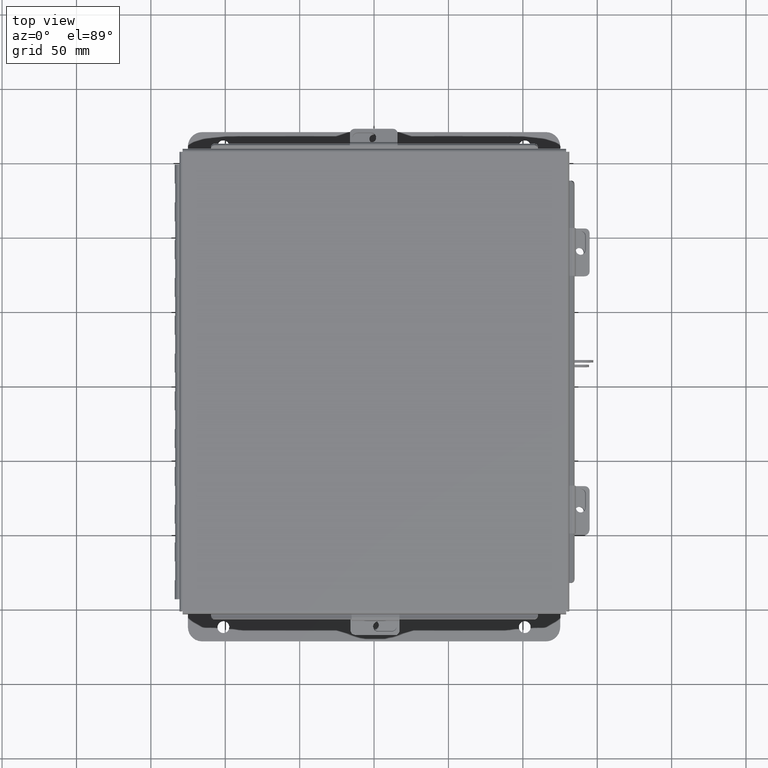
[diagram: clean part render]
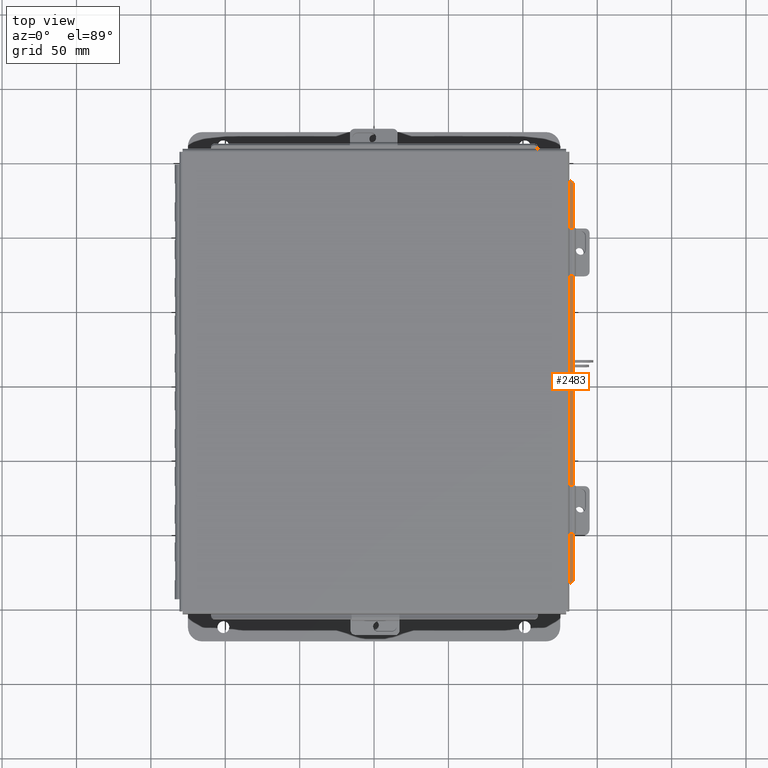
[diagram: same view with one face highlighted and labeled with its STEP entity id]
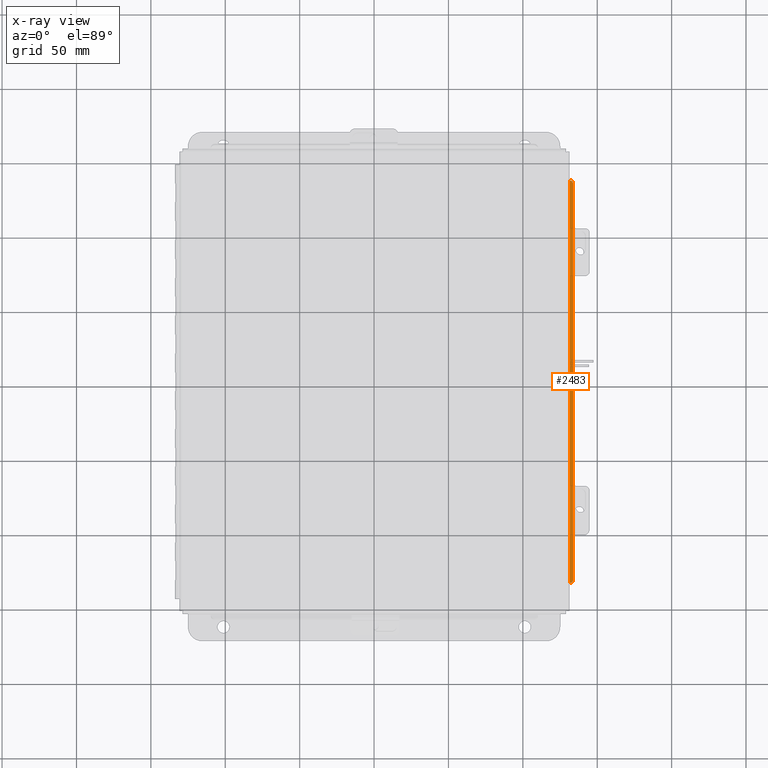
[diagram: x-ray of the same camera — body ghosted, the highlighted face saturated]
A machine part, top view. The second image highlights one B-rep face of the part: STEP entity #2483.
The next image is the same camera in x-ray: the body ghosted, the highlighted face saturated — about 0% of this face is hidden behind the body in this view.
In plain terms, the highlighted planar face has unit normal (-0.5, -0, 0.866).
Its self-contained STEP definition (entity closure, byte-faithful):
#24 = CARTESIAN_POINT ( 'NONE',  ( -5.169750000000002300, 5.324478932188135600, 0.4795057713659395800 ) ) ;
#181 = CARTESIAN_POINT ( 'NONE',  ( -5.174103810567668700, -5.324478932188134700, 0.4769920976626969600 ) ) ;
#974 = CARTESIAN_POINT ( 'NONE',  ( -5.169750000000002300, -5.324478932188134700, 0.4795057713659395800 ) ) ;
#1316 = EDGE_CURVE ( 'NONE', #12240, #6551, #12857, .T. ) ;
#1872 = CARTESIAN_POINT ( 'NONE',  ( -5.174103810567669500, 5.324478932188136500, 0.4769920976626966200 ) ) ;
#1881 = ORIENTED_EDGE ( 'NONE', *, *, #14186, .F. ) ;
#2483 = ADVANCED_FACE ( 'NONE', ( #12433 ), #12835, .T. ) ;
#2669 = DIRECTION ( 'NONE',  ( 0.0000000000000000000, 1.000000000000000000, -1.539219909660675400E-016 ) ) ;
#2784 = VECTOR ( 'NONE', #16295, 39.37007874015748100 ) ;
#3633 = AXIS2_PLACEMENT_3D ( 'NONE', #6285, #17083, #14679 ) ;
#3662 = CARTESIAN_POINT ( 'NONE',  ( -5.174103810567668700, -5.224478932188135100, 0.4769920976626971200 ) ) ;
#4557 = AXIS2_PLACEMENT_3D ( 'NONE', #3662, #13171, #5022 ) ;
#4918 = CARTESIAN_POINT ( 'NONE',  ( -5.260706350946112100, -5.224478932188135100, 0.4269920976626969100 ) ) ;
#5022 = DIRECTION ( 'NONE',  ( -0.8660254037844370400, 0.0000000000000000000, -0.5000000000000028900 ) ) ;
#5130 = VERTEX_POINT ( 'NONE', #181 ) ;
#5555 = VERTEX_POINT ( 'NONE', #974 ) ;
#5587 = VERTEX_POINT ( 'NONE', #24 ) ;
#5859 = CARTESIAN_POINT ( 'NONE',  ( -5.260706350946112100, 5.224478932188135100, 0.4269920976626969100 ) ) ;
#6285 = CARTESIAN_POINT ( 'NONE',  ( -5.174103810567668700, 5.224478932188135100, 0.4769920976626971800 ) ) ;
#6551 = VERTEX_POINT ( 'NONE', #1872 ) ;
#7525 = DIRECTION ( 'NONE',  ( -0.0000000000000000000, -1.000000000000000000, -0.0000000000000000000 ) ) ;
#7736 = EDGE_CURVE ( 'NONE', #5555, #5587, #15732, .T. ) ;
#7884 = VECTOR ( 'NONE', #7525, 39.37007874015748100 ) ;
#8064 = CARTESIAN_POINT ( 'NONE',  ( -5.169750000000002300, -5.324478932188134700, 0.4795057713659400300 ) ) ;
#8248 = ORIENTED_EDGE ( 'NONE', *, *, #8686, .F. ) ;
#8501 = VECTOR ( 'NONE', #2669, 39.37007874015748100 ) ;
#8686 = EDGE_CURVE ( 'NONE', #5130, #5555, #13619, .T. ) ;
#9143 = LINE ( 'NONE', #15683, #7884 ) ;
#10157 = AXIS2_PLACEMENT_3D ( 'NONE', #13826, #13549, #16528 ) ;
#10219 = CIRCLE ( 'NONE', #4557, 0.09999999999999986700 ) ;
#10389 = EDGE_CURVE ( 'NONE', #12240, #10438, #9143, .T. ) ;
#10438 = VERTEX_POINT ( 'NONE', #4918 ) ;
#10490 = EDGE_CURVE ( 'NONE', #5130, #10438, #10219, .T. ) ;
#11666 = LINE ( 'NONE', #17585, #15316 ) ;
#12240 = VERTEX_POINT ( 'NONE', #5859 ) ;
#12433 = FACE_OUTER_BOUND ( 'NONE', #16696, .T. ) ;
#12835 = PLANE ( 'NONE',  #10157 ) ;
#12857 = CIRCLE ( 'NONE', #3633, 0.09999999999999986700 ) ;
#13171 = DIRECTION ( 'NONE',  ( 0.5000000000000020000, 0.0000000000000000000, -0.8660254037844374900 ) ) ;
#13549 = DIRECTION ( 'NONE',  ( 0.5000000000000020000, 0.0000000000000000000, -0.8660254037844374900 ) ) ;
#13619 = LINE ( 'NONE', #14912, #2784 ) ;
#13826 = CARTESIAN_POINT ( 'NONE',  ( -1.500069589632089700, 0.0000000000000000000, 2.598196744131761700 ) ) ;
#14186 = EDGE_CURVE ( 'NONE', #5587, #6551, #11666, .T. ) ;
#14615 = ORIENTED_EDGE ( 'NONE', *, *, #10490, .T. ) ;
#14679 = DIRECTION ( 'NONE',  ( -0.8660254037844370400, 0.0000000000000000000, -0.5000000000000028900 ) ) ;
#14912 = CARTESIAN_POINT ( 'NONE',  ( -5.156250000000001800, -5.324478932188134700, 0.4872999999999997300 ) ) ;
#15316 = VECTOR ( 'NONE', #17533, 39.37007874015748900 ) ;
#15683 = CARTESIAN_POINT ( 'NONE',  ( -5.260706350946112100, -5.324478932188134700, 0.4269920976626969100 ) ) ;
#15724 = ORIENTED_EDGE ( 'NONE', *, *, #10389, .F. ) ;
#15732 = LINE ( 'NONE', #8064, #8501 ) ;
#15943 = ORIENTED_EDGE ( 'NONE', *, *, #7736, .F. ) ;
#16295 = DIRECTION ( 'NONE',  ( 0.8660254037844374900, -0.0000000000000000000, 0.5000000000000020000 ) ) ;
#16528 = DIRECTION ( 'NONE',  ( -0.8660254037844374900, 0.0000000000000000000, -0.5000000000000020000 ) ) ;
#16696 = EDGE_LOOP ( 'NONE', ( #8248, #14615, #15724, #16990, #1881, #15943 ) ) ;
#16990 = ORIENTED_EDGE ( 'NONE', *, *, #1316, .T. ) ;
#17083 = DIRECTION ( 'NONE',  ( 0.5000000000000020000, 0.0000000000000000000, -0.8660254037844374900 ) ) ;
#17533 = DIRECTION ( 'NONE',  ( -0.8660254037844362700, -9.059668427480828900E-015, -0.5000000000000037700 ) ) ;
#17585 = CARTESIAN_POINT ( 'NONE',  ( -5.260706350946112100, 5.324478932188135600, 0.4269920976626969100 ) ) ;